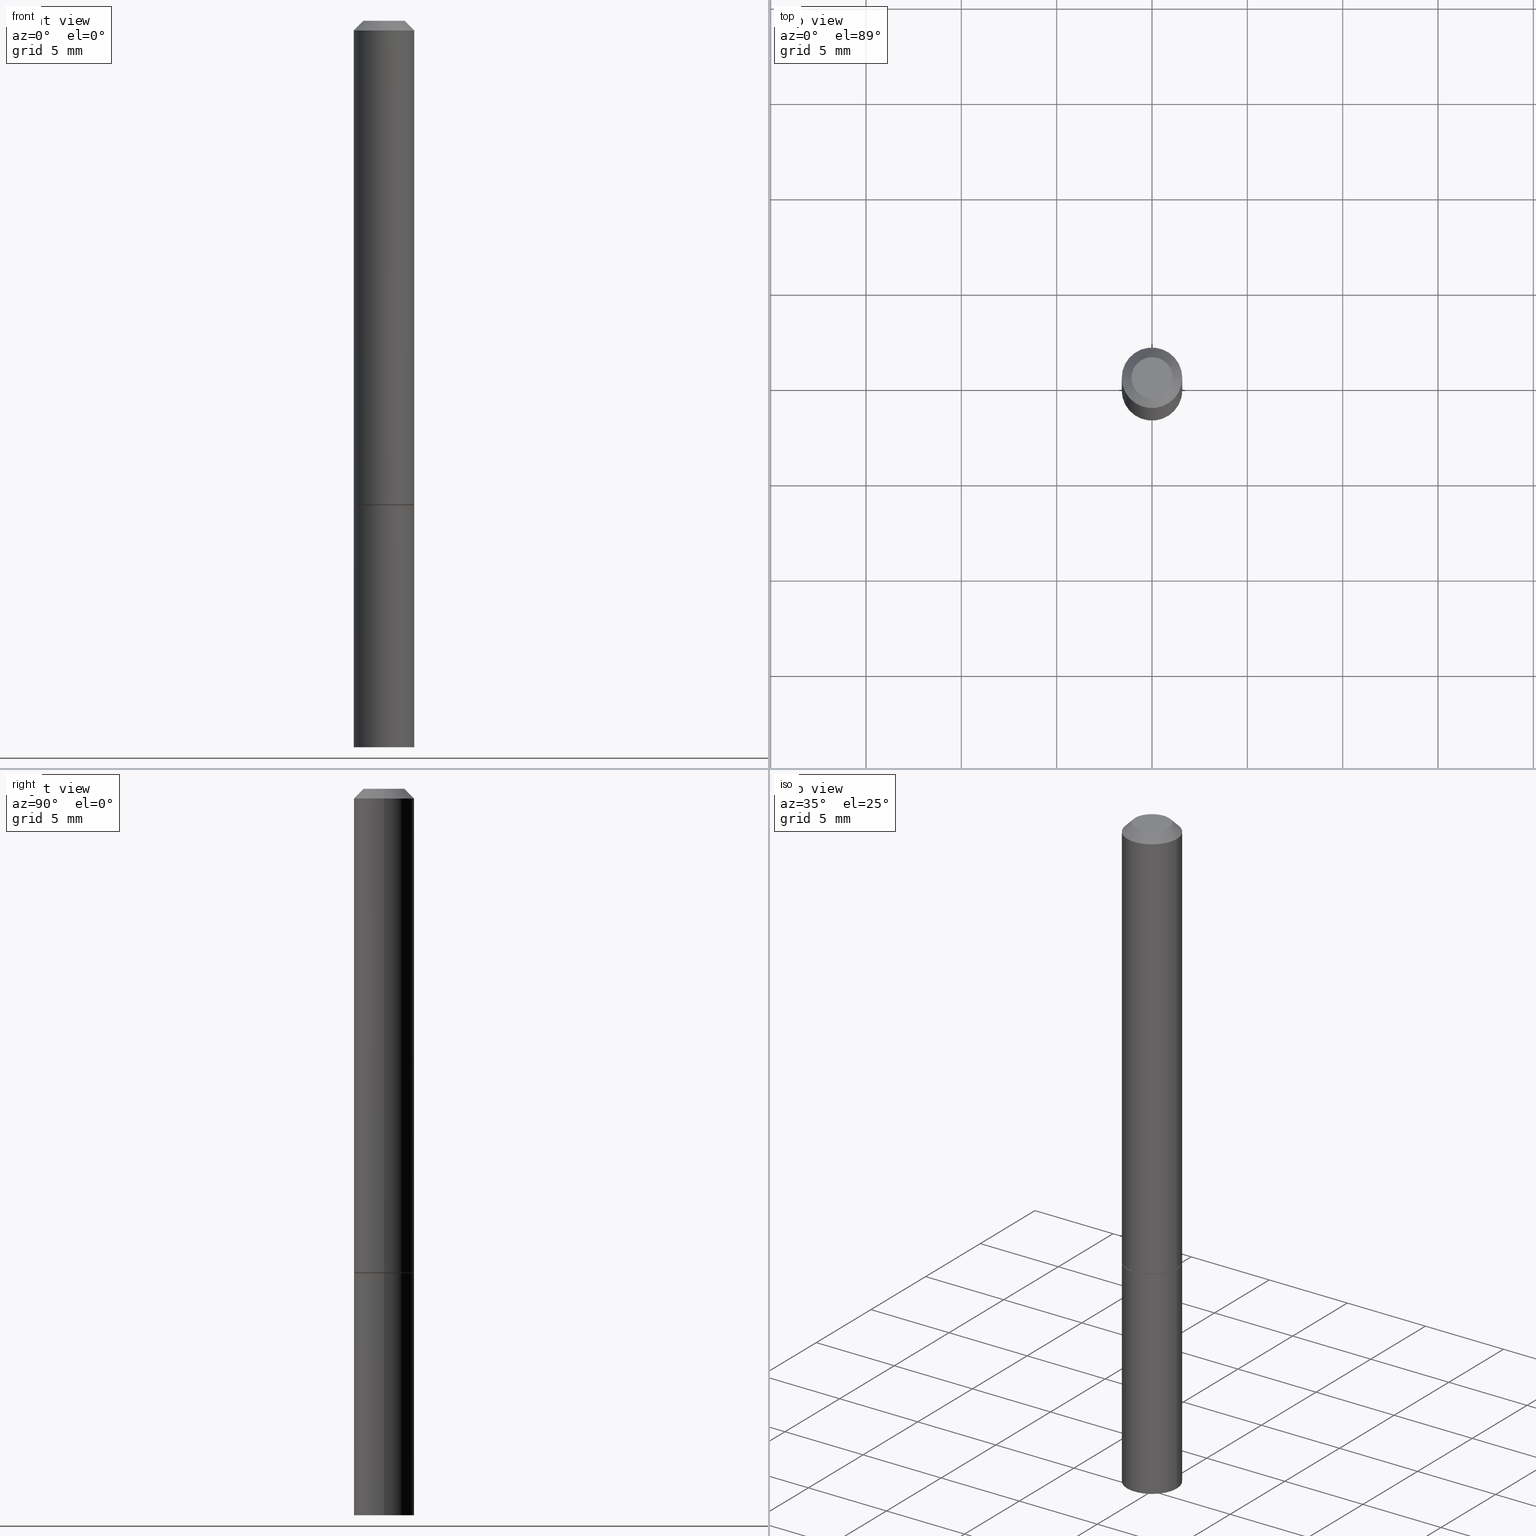
[diagram: canonical four-view strip — front | top / right | iso, engineering-drawing reading convention]
A machine part, canonical four-view strip (front | top / right | iso — engineering-drawing reading convention). The complete STEP part file that produces these views, byte-faithful:
ISO-10303-21;
HEADER;
FILE_DESCRIPTION (( 'STEP AP203' ),
    '1' );
FILE_NAME ('91272.STEP',
    '2024-03-01T04:19:20',
    ( '' ),
    ( '' ),
    'SwSTEP 2.0',
    'SolidWorks 2023',
    '' );
FILE_SCHEMA (( 'CONFIG_CONTROL_DESIGN' ));
ENDSEC;

DATA;
#1 = DIRECTION ( 'NONE',  ( 0.7071067811865595631, -2.468850131082382884E-15, 0.7071067811865354713 ) ) ;
#2 = DIMENSIONAL_EXPONENTS ( 1.000000000000000000, 0.000000000000000000, 0.000000000000000000, 0.000000000000000000, 0.000000000000000000, 0.000000000000000000, 0.000000000000000000 ) ;
#3 = LINE ( 'NONE', #30, #105 ) ;
#4 = DIRECTION ( 'NONE',  ( -0.7071067811865464625, 2.468850131082245622E-15, -0.7071067811865485719 ) ) ;
#5 = ORIENTED_EDGE ( 'NONE', *, *, #342, .F. ) ;
#6 = DIRECTION ( 'NONE',  ( 1.000000000000000000, -6.982962677686267499E-15, 4.876176775795935793E-29 ) ) ;
#7 = AXIS2_PLACEMENT_3D ( 'NONE', #261, #148, #96 ) ;
#8 = FACE_OUTER_BOUND ( 'NONE', #252, .T. ) ;
#9 = EDGE_CURVE ( 'NONE', #135, #25, #229, .T. ) ;
#10 = PERSON_AND_ORGANIZATION_ROLE ( 'classification_officer' ) ;
#11 = VECTOR ( 'NONE', #1, 39.37007874015748143 ) ;
#12 = APPLICATION_PROTOCOL_DEFINITION ( 'international standard', 'config_control_design', 1994, #344 ) ;
#13 = PLANE ( 'NONE',  #152 ) ;
#14 = DIRECTION ( 'NONE',  ( 1.000000000000000000, -6.982962677686265133E-15, 0.000000000000000000 ) ) ;
#15 = VECTOR ( 'NONE', #302, 39.37007874015748143 ) ;
#16 = ORGANIZATION ( 'UNSPECIFIED', 'UNSPECIFIED', '' ) ;
#17 = APPROVAL_ROLE ( '' ) ;
#18 = CC_DESIGN_DATE_AND_TIME_ASSIGNMENT ( #125, #247, ( #222 ) ) ;
#19 = ORIENTED_EDGE ( 'NONE', *, *, #151, .F. ) ;
#20 = PERSON_AND_ORGANIZATION_ROLE ( 'design_supplier' ) ;
#21 = VERTEX_POINT ( 'NONE', #155 ) ;
#22 = PERSON_AND_ORGANIZATION_ROLE ( 'design_owner' ) ;
#23 = CARTESIAN_POINT ( 'NONE',  ( 0.06150000000000001299, -3.920933543520851632E-15, -1.000000000000000222 ) ) ;
#24 = ADVANCED_BREP_SHAPE_REPRESENTATION ( '91272', ( #75, #320, #196 ), #70 ) ;
#25 = VERTEX_POINT ( 'NONE', #166 ) ;
#26 = FACE_OUTER_BOUND ( 'NONE', #73, .T. ) ;
#27 = AXIS2_PLACEMENT_3D ( 'NONE', #136, #87, #242 ) ;
#28 = CIRCLE ( 'NONE', #169, 0.06150000000000001299 ) ;
#29 = ADVANCED_FACE ( 'NONE', ( #279 ), #69, .T. ) ;
#30 = CARTESIAN_POINT ( 'NONE',  ( -0.06250000000000001388, 4.440892098500627148E-16, -3.074334431409317165E-30 ) ) ;
#31 = DIRECTION ( 'NONE',  ( 1.000000000000000000, -6.982962677686266711E-15, 4.876176775795935793E-29 ) ) ;
#32 = CARTESIAN_POINT ( 'NONE',  ( -0.04249999999999991979, 3.316907271900968207E-16, -2.134256245050425658E-17 ) ) ;
#33 = ADVANCED_FACE ( 'NONE', ( #68 ), #94, .T. ) ;
#34 = DIRECTION ( 'NONE',  ( -2.445468806185136597E-29, 3.491481338843145583E-15, 1.000000000000000000 ) ) ;
#35 = CARTESIAN_POINT ( 'NONE',  ( 0.06250000000000001388, -3.927916506198537646E-15, -1.000000000000000222 ) ) ;
#36 = CARTESIAN_POINT ( 'NONE',  ( 2.445468806185136877E-29, -3.491481338843145977E-15, -1.000000000000000222 ) ) ;
#37 = APPROVAL_PERSON_ORGANIZATION ( #164, #85, #292 ) ;
#38 = ORIENTED_EDGE ( 'NONE', *, *, #319, .F. ) ;
#39 = DIRECTION ( 'NONE',  ( 1.000000000000000000, -6.982962677686268288E-15, 0.000000000000000000 ) ) ;
#40 = COORDINATED_UNIVERSAL_TIME_OFFSET ( 5, 0, .BEHIND. ) ;
#41 = VERTEX_POINT ( 'NONE', #35 ) ;
#42 = PRODUCT_RELATED_PRODUCT_CATEGORY ( 'detail', '', ( #199 ) ) ;
#43 = PERSON_AND_ORGANIZATION ( #83, #16 ) ;
#44 = CARTESIAN_POINT ( 'NONE',  ( -0.06250000000000001388, -3.920262463703869855E-15, -1.000000000000000222 ) ) ;
#45 = DESIGN_CONTEXT ( 'detailed design', #123, 'design' ) ;
#46 = EDGE_CURVE ( 'NONE', #200, #234, #210, .T. ) ;
#47 = ORIENTED_EDGE ( 'NONE', *, *, #307, .F. ) ;
#48 = EDGE_CURVE ( 'NONE', #135, #163, #270, .T. ) ;
#49 = CARTESIAN_POINT ( 'NONE',  ( 4.890937612370282792E-31, -6.982962677686303935E-17, -0.02000000000000003858 ) ) ;
#50 = PRODUCT_DEFINITION_FORMATION_WITH_SPECIFIED_SOURCE ( 'ANY', '', #199, .NOT_KNOWN. ) ;
#51 = PERSON_AND_ORGANIZATION_ROLE ( 'creator' ) ;
#52 = ADVANCED_FACE ( 'NONE', ( #8 ), #300, .T. ) ;
#53 = ORIENTED_EDGE ( 'NONE', *, *, #259, .F. ) ;
#54 = LINE ( 'NONE', #134, #327 ) ;
#55 = AXIS2_PLACEMENT_3D ( 'NONE', #80, #280, #202 ) ;
#56 = FACE_OUTER_BOUND ( 'NONE', #355, .T. ) ;
#57 = ORIENTED_EDGE ( 'NONE', *, *, #324, .T. ) ;
#58 = LENGTH_MEASURE_WITH_UNIT ( LENGTH_MEASURE( 0.02539999999999999897 ), #207 );
#59 = CARTESIAN_POINT ( 'NONE',  ( 0.000000000000000000, 0.000000000000000000, 0.000000000000000000 ) ) ;
#60 = FACE_OUTER_BOUND ( 'NONE', #111, .T. ) ;
#61 = CC_DESIGN_SECURITY_CLASSIFICATION ( #222, ( #50 ) ) ;
#62 = ORIENTED_EDGE ( 'NONE', *, *, #114, .T. ) ;
#63 = DIRECTION ( 'NONE',  ( -2.445468806185136597E-29, 3.491481338843145583E-15, 1.000000000000000000 ) ) ;
#64 = DIRECTION ( 'NONE',  ( -1.000000000000000000, 6.982962677686265922E-15, -4.876176775795935793E-29 ) ) ;
#65 = APPLICATION_PROTOCOL_DEFINITION ( 'international standard', 'config_control_design', 1994, #123 ) ;
#66 = ORIENTED_EDGE ( 'NONE', *, *, #181, .F. ) ;
#67 = DIRECTION ( 'NONE',  ( -2.445468806185136877E-29, 3.491481338843145188E-15, 1.000000000000000000 ) ) ;
#68 = FACE_OUTER_BOUND ( 'NONE', #158, .T. ) ;
#69 = CONICAL_SURFACE ( 'NONE', #275, 0.06150000000000001299, 0.7853981633974653764 ) ;
#70 =( GEOMETRIC_REPRESENTATION_CONTEXT ( 3 ) GLOBAL_UNCERTAINTY_ASSIGNED_CONTEXT ( ( #258 ) ) GLOBAL_UNIT_ASSIGNED_CONTEXT ( ( #103, #98, #341 ) ) REPRESENTATION_CONTEXT ( 'NONE', 'WORKASPACE' ) );
#71 = ORIENTED_EDGE ( 'NONE', *, *, #184, .T. ) ;
#72 = VERTEX_POINT ( 'NONE', #347 ) ;
#73 = EDGE_LOOP ( 'NONE', ( #332, #92, #47, #86 ) ) ;
#74 = AXIS2_PLACEMENT_3D ( 'NONE', #59, #285, #120 ) ;
#75 = MANIFOLD_SOLID_BREP ( 'Body-Move/Copy2[1]', #185 ) ;
#76 = APPROVAL ( #213, 'UNSPECIFIED' ) ;
#77 = DIRECTION ( 'NONE',  ( -2.445468806185136877E-29, 3.491481338843145188E-15, 1.000000000000000000 ) ) ;
#78 = CARTESIAN_POINT ( 'NONE',  ( 2.967759138016657633E-16, 0.04249999999999991979, -1.590592381260844414E-16 ) ) ;
#79 = APPROVAL_DATE_TIME ( #276, #173 ) ;
#80 = CARTESIAN_POINT ( 'NONE',  ( 4.364351673554284500E-16, 0.06249999999999478195, -1.500000000000000444 ) ) ;
#81 = CONICAL_SURFACE ( 'NONE', #109, 0.06249999999999988204, 0.7853981633974468357 ) ;
#82 = CC_DESIGN_APPROVAL ( #76, ( #222 ) ) ;
#83 = PERSON ( 'UNSPECIFIED', 'UNSPECIFIED', 'UNSPECIFIED', ('UNSPECIFIED'), ('UNSPECIFIED'), ('UNSPECIFIED') ) ;
#84 = ORIENTED_EDGE ( 'NONE', *, *, #167, .T. ) ;
#85 = APPROVAL ( #219, 'UNSPECIFIED' ) ;
#86 = ORIENTED_EDGE ( 'NONE', *, *, #100, .F. ) ;
#87 = DIRECTION ( 'NONE',  ( -2.445468806185136597E-29, 3.491481338843145583E-15, 1.000000000000000000 ) ) ;
#88 = DIRECTION ( 'NONE',  ( -2.445468806185136597E-29, 3.491481338843145583E-15, 1.000000000000000000 ) ) ;
#89 = CARTESIAN_POINT ( 'NONE',  ( 0.000000000000000000, 0.000000000000000000, 0.000000000000000000 ) ) ;
#90 = DIRECTION ( 'NONE',  ( -2.445468806185136877E-29, 3.491481338843145188E-15, 1.000000000000000000 ) ) ;
#91 = APPROVAL_PERSON_ORGANIZATION ( #102, #173, #221 ) ;
#92 = ORIENTED_EDGE ( 'NONE', *, *, #225, .T. ) ;
#93 = DIRECTION ( 'NONE',  ( 0.7071067811865464625, -7.319954787623252890E-15, -0.7071067811865485719 ) ) ;
#94 = CYLINDRICAL_SURFACE ( 'NONE', #74, 0.06250000000000001388 ) ;
#95 = DATE_AND_TIME ( #241, #144 ) ;
#96 = DIRECTION ( 'NONE',  ( -1.000000000000000000, 6.982962677686266711E-15, 0.000000000000000000 ) ) ;
#97 = CARTESIAN_POINT ( 'NONE',  ( 0.06250000000000001388, -4.364351673553918173E-16, 3.047610484872460571E-30 ) ) ;
#98 =( NAMED_UNIT ( * ) PLANE_ANGLE_UNIT ( ) SI_UNIT ( $, .RADIAN. ) );
#99 = DATE_AND_TIME ( #351, #218 ) ;
#100 = EDGE_CURVE ( 'NONE', #294, #41, #149, .T. ) ;
#101 = SHAPE_DEFINITION_REPRESENTATION ( #143, #24 ) ;
#102 = PERSON_AND_ORGANIZATION ( #83, #16 ) ;
#103 =( CONVERSION_BASED_UNIT ( 'INCH', #58 ) LENGTH_UNIT ( ) NAMED_UNIT ( #2 ) );
#104 = AXIS2_PLACEMENT_3D ( 'NONE', #288, #340, #31 ) ;
#105 = VECTOR ( 'NONE', #145, 39.37007874015748143 ) ;
#106 = ORIENTED_EDGE ( 'NONE', *, *, #114, .F. ) ;
#107 = DIRECTION ( 'NONE',  ( 1.000000000000000000, -6.982962677686269077E-15, 0.000000000000000000 ) ) ;
#108 = ORIENTED_EDGE ( 'NONE', *, *, #167, .F. ) ;
#109 = AXIS2_PLACEMENT_3D ( 'NONE', #289, #239, #240 ) ;
#110 = EDGE_LOOP ( 'NONE', ( #360, #139 ) ) ;
#111 = EDGE_LOOP ( 'NONE', ( #38, #84, #71, #358 ) ) ;
#112 = DIRECTION ( 'NONE',  ( -2.445468806185136597E-29, 3.491481338843145583E-15, 1.000000000000000000 ) ) ;
#113 = ORIENTED_EDGE ( 'NONE', *, *, #251, .F. ) ;
#114 = EDGE_CURVE ( 'NONE', #72, #294, #195, .T. ) ;
#115 = DIRECTION ( 'NONE',  ( 1.000000000000000000, -6.982962677686265133E-15, 0.000000000000000000 ) ) ;
#116 = CC_DESIGN_DATE_AND_TIME_ASSIGNMENT ( #99, #253, ( #366 ) ) ;
#117 = DIRECTION ( 'NONE',  ( 1.000000000000000000, -6.982962677686265922E-15, 4.876176775795935793E-29 ) ) ;
#118 = ORIENTED_EDGE ( 'NONE', *, *, #324, .F. ) ;
#119 = AXIS2_PLACEMENT_3D ( 'NONE', #49, #359, #277 ) ;
#120 = DIRECTION ( 'NONE',  ( 1.000000000000000000, -6.982962677686267499E-15, 4.876176775795935793E-29 ) ) ;
#121 = FACE_OUTER_BOUND ( 'NONE', #110, .T. ) ;
#122 = DIRECTION ( 'NONE',  ( -2.445468806185136597E-29, 3.491481338843145583E-15, 1.000000000000000000 ) ) ;
#123 = APPLICATION_CONTEXT ( 'configuration controlled 3d designs of mechanical parts and assemblies' ) ;
#124 = DIRECTION ( 'NONE',  ( -2.445468806185136597E-29, 3.491481338843145583E-15, 1.000000000000000000 ) ) ;
#125 = DATE_AND_TIME ( #128, #245 ) ;
#126 = PERSON_AND_ORGANIZATION ( #83, #16 ) ;
#127 = CC_DESIGN_PERSON_AND_ORGANIZATION_ASSIGNMENT ( #43, #20, ( #50 ) ) ;
#128 = CALENDAR_DATE ( 2024, 29, 2 ) ;
#129 = EDGE_CURVE ( 'NONE', #365, #234, #326, .T. ) ;
#130 = ORIENTED_EDGE ( 'NONE', *, *, #349, .F. ) ;
#131 = CC_DESIGN_PERSON_AND_ORGANIZATION_ASSIGNMENT ( #322, #22, ( #199 ) ) ;
#132 = DIRECTION ( 'NONE',  ( -2.445468806185136597E-29, 3.491481338843145583E-15, 1.000000000000000000 ) ) ;
#133 = PERSON_AND_ORGANIZATION_ROLE ( 'creator' ) ;
#134 = CARTESIAN_POINT ( 'NONE',  ( -0.06249999999999993061, 4.440892098500621231E-16, -3.074334431409312610E-30 ) ) ;
#135 = VERTEX_POINT ( 'NONE', #309 ) ;
#136 = CARTESIAN_POINT ( 'NONE',  ( 5.219257071676098903E-46, -7.451715851902235727E-32, -2.134256245050205639E-17 ) ) ;
#137 = ORIENTED_EDGE ( 'NONE', *, *, #342, .T. ) ;
#138 = AXIS2_PLACEMENT_3D ( 'NONE', #306, #265, #172 ) ;
#139 = ORIENTED_EDGE ( 'NONE', *, *, #259, .T. ) ;
#140 = VECTOR ( 'NONE', #67, 39.37007874015748143 ) ;
#141 = ADVANCED_FACE ( 'NONE', ( #60 ), #176, .T. ) ;
#142 = CARTESIAN_POINT ( 'NONE',  ( 2.443023337378951835E-29, -3.487989857504302970E-15, -0.9990000000000002212 ) ) ;
#143 = PRODUCT_DEFINITION_SHAPE ( 'NONE', 'NONE',  #366 ) ;
#144 = LOCAL_TIME ( 23, 19, 20.00000000000000000, #315 ) ;
#145 = DIRECTION ( 'NONE',  ( -2.445468806185136877E-29, 3.491481338843145188E-15, 1.000000000000000000 ) ) ;
#146 = LINE ( 'NONE', #263, #354 ) ;
#147 = PLANE ( 'NONE',  #244 ) ;
#148 = DIRECTION ( 'NONE',  ( 2.445468806185136597E-29, -3.491481338843145583E-15, -1.000000000000000000 ) ) ;
#149 = LINE ( 'NONE', #97, #150 ) ;
#150 = VECTOR ( 'NONE', #90, 39.37007874015748143 ) ;
#151 = EDGE_CURVE ( 'NONE', #256, #365, #146, .T. ) ;
#152 = AXIS2_PLACEMENT_3D ( 'NONE', #220, #165, #117 ) ;
#153 = CARTESIAN_POINT ( 'NONE',  ( 0.06249999999999988204, -4.986107516375829362E-16, -0.02000000000000003858 ) ) ;
#154 = ADVANCED_FACE ( 'NONE', ( #121 ), #147, .F. ) ;
#155 = CARTESIAN_POINT ( 'NONE',  ( 0.06249999999999997918, -3.924425024859694639E-15, -0.9990000000000002212 ) ) ;
#156 = COORDINATED_UNIVERSAL_TIME_OFFSET ( 5, 0, .BEHIND. ) ;
#157 = ADVANCED_FACE ( 'NONE', ( #178 ), #81, .T. ) ;
#158 = EDGE_LOOP ( 'NONE', ( #313, #62, #216, #53 ) ) ;
#159 = CLOSED_SHELL ( 'NONE', ( #52, #295, #157, #197, #141, #29, #284, #362 ) ) ;
#160 = AXIS2_PLACEMENT_3D ( 'NONE', #78, #293, #352 ) ;
#161 = DIRECTION ( 'NONE',  ( -2.445468806185136597E-29, 3.491481338843145583E-15, 1.000000000000000000 ) ) ;
#162 = APPROVAL_PERSON_ORGANIZATION ( #215, #76, #17 ) ;
#163 = VERTEX_POINT ( 'NONE', #343 ) ;
#164 = PERSON_AND_ORGANIZATION ( #83, #16 ) ;
#165 = DIRECTION ( 'NONE',  ( -2.438088387897960049E-29, 3.491481338843145188E-15, 1.000000000000000000 ) ) ;
#166 = CARTESIAN_POINT ( 'NONE',  ( -0.06249999999999999306, -1.334820532290518940E-15, -0.9990000000000002212 ) ) ;
#167 = EDGE_CURVE ( 'NONE', #25, #21, #337, .T. ) ;
#168 = EDGE_LOOP ( 'NONE', ( #170, #291 ) ) ;
#169 = AXIS2_PLACEMENT_3D ( 'NONE', #283, #230, #305 ) ;
#170 = ORIENTED_EDGE ( 'NONE', *, *, #262, .T. ) ;
#171 = VERTEX_POINT ( 'NONE', #44 ) ;
#172 = DIRECTION ( 'NONE',  ( 1.000000000000000000, -6.982962677686261189E-15, 0.000000000000000000 ) ) ;
#173 = APPROVAL ( #346, 'UNSPECIFIED' ) ;
#174 = AXIS2_PLACEMENT_3D ( 'NONE', #243, #236, #182 ) ;
#175 = CIRCLE ( 'NONE', #119, 0.06249999999999988204 ) ;
#176 = CYLINDRICAL_SURFACE ( 'NONE', #104, 0.06249999999999993061 ) ;
#177 = DIRECTION ( 'NONE',  ( 1.000000000000000000, -6.982962677686261189E-15, 0.000000000000000000 ) ) ;
#178 = FACE_OUTER_BOUND ( 'NONE', #187, .T. ) ;
#179 = ORIENTED_EDGE ( 'NONE', *, *, #46, .T. ) ;
#180 = CARTESIAN_POINT ( 'NONE',  ( 2.445468806185136877E-29, -3.491481338843145977E-15, -1.000000000000000222 ) ) ;
#181 = EDGE_CURVE ( 'NONE', #200, #256, #249, .T. ) ;
#182 = DIRECTION ( 'NONE',  ( 1.000000000000000000, -6.982962677686268288E-15, 0.000000000000000000 ) ) ;
#183 = ORIENTED_EDGE ( 'NONE', *, *, #317, .T. ) ;
#184 = EDGE_CURVE ( 'NONE', #21, #234, #206, .T. ) ;
#185 = CLOSED_SHELL ( 'NONE', ( #357, #286, #154, #33 ) ) ;
#186 = AXIS2_PLACEMENT_3D ( 'NONE', #266, #63, #177 ) ;
#187 = EDGE_LOOP ( 'NONE', ( #66, #179, #183, #19 ) ) ;
#188 = CALENDAR_DATE ( 2024, 29, 2 ) ;
#189 = AXIS2_PLACEMENT_3D ( 'NONE', #142, #257, #115 ) ;
#190 = ORIENTED_EDGE ( 'NONE', *, *, #317, .F. ) ;
#191 = DATE_AND_TIME ( #188, #318 ) ;
#192 = DIRECTION ( 'NONE',  ( -2.445468806185136597E-29, 3.491481338843145583E-15, 1.000000000000000000 ) ) ;
#193 = CC_DESIGN_PERSON_AND_ORGANIZATION_ASSIGNMENT ( #299, #133, ( #50 ) ) ;
#194 = APPROVAL_DATE_TIME ( #191, #85 ) ;
#195 = CIRCLE ( 'NONE', #138, 0.06250000000000001388 ) ;
#196 = AXIS2_PLACEMENT_3D ( 'NONE', #89, #248, #316 ) ;
#197 = ADVANCED_FACE ( 'NONE', ( #308 ), #250, .T. ) ;
#198 = FACE_OUTER_BOUND ( 'NONE', #321, .T. ) ;
#199 = PRODUCT ( '91272', '91272', '', ( #336 ) ) ;
#200 = VERTEX_POINT ( 'NONE', #287 ) ;
#201 = CARTESIAN_POINT ( 'NONE',  ( -0.06150000000000001299, -3.054497556350684369E-15, -1.000000000000000222 ) ) ;
#202 = DIRECTION ( 'NONE',  ( -1.000000000000000000, 6.982962677686265922E-15, -4.876176775795935793E-29 ) ) ;
#203 = CC_DESIGN_APPROVAL ( #173, ( #366 ) ) ;
#204 = LINE ( 'NONE', #23, #11 ) ;
#205 = DIRECTION ( 'NONE',  ( 1.000000000000000000, -6.982962677686269077E-15, 0.000000000000000000 ) ) ;
#206 = LINE ( 'NONE', #211, #140 ) ;
#207 =( LENGTH_UNIT ( ) NAMED_UNIT ( * ) SI_UNIT ( $, .METRE. ) );
#208 = DIRECTION ( 'NONE',  ( 1.000000000000000000, -6.982962677686266711E-15, 0.000000000000000000 ) ) ;
#209 = CIRCLE ( 'NONE', #303, 0.06250000000000001388 ) ;
#210 = LINE ( 'NONE', #153, #217 ) ;
#211 = CARTESIAN_POINT ( 'NONE',  ( 0.06249999999999993061, -4.364351673553911764E-16, 3.047610484872456367E-30 ) ) ;
#212 = FACE_OUTER_BOUND ( 'NONE', #168, .T. ) ;
#213 = APPROVAL_STATUS ( 'not_yet_approved' ) ;
#214 = CARTESIAN_POINT ( 'NONE',  ( 2.443023337378951835E-29, -3.487989857504302970E-15, -0.9990000000000002212 ) ) ;
#215 = PERSON_AND_ORGANIZATION ( #83, #16 ) ;
#216 = ORIENTED_EDGE ( 'NONE', *, *, #100, .T. ) ;
#217 = VECTOR ( 'NONE', #93, 39.37007874015748143 ) ;
#218 = LOCAL_TIME ( 23, 19, 20.00000000000000000, #268 ) ;
#219 = APPROVAL_STATUS ( 'not_yet_approved' ) ;
#220 = CARTESIAN_POINT ( 'NONE',  ( 2.445468806185136877E-29, -3.491481338843145977E-15, -1.000000000000000222 ) ) ;
#221 = APPROVAL_ROLE ( '' ) ;
#222 = SECURITY_CLASSIFICATION ( '', '', #361 ) ;
#223 = PLANE ( 'NONE',  #160 ) ;
#224 = PERSON_AND_ORGANIZATION ( #83, #16 ) ;
#225 = EDGE_CURVE ( 'NONE', #72, #171, #3, .T. ) ;
#226 = AXIS2_PLACEMENT_3D ( 'NONE', #333, #88, #208 ) ;
#227 = ORIENTED_EDGE ( 'NONE', *, *, #262, .F. ) ;
#228 = ORIENTED_EDGE ( 'NONE', *, *, #9, .F. ) ;
#229 = LINE ( 'NONE', #201, #15 ) ;
#230 = DIRECTION ( 'NONE',  ( -2.445468806185136597E-29, 3.491481338843145583E-15, 1.000000000000000000 ) ) ;
#231 = CYLINDRICAL_SURFACE ( 'NONE', #348, 0.06249999999999993061 ) ;
#232 = CC_DESIGN_APPROVAL ( #85, ( #50 ) ) ;
#233 = CYLINDRICAL_SURFACE ( 'NONE', #310, 0.06250000000000001388 ) ;
#234 = VERTEX_POINT ( 'NONE', #311 ) ;
#235 = DIRECTION ( 'NONE',  ( -2.445468806185136597E-29, 3.491481338843145583E-15, 1.000000000000000000 ) ) ;
#236 = DIRECTION ( 'NONE',  ( -2.445468806185136597E-29, 3.491481338843145583E-15, 1.000000000000000000 ) ) ;
#237 = ORIENTED_EDGE ( 'NONE', *, *, #46, .F. ) ;
#238 = CIRCLE ( 'NONE', #186, 0.06250000000000001388 ) ;
#239 = DIRECTION ( 'NONE',  ( 2.445468806185136597E-29, -3.491481338843145583E-15, -1.000000000000000000 ) ) ;
#240 = DIRECTION ( 'NONE',  ( -1.000000000000000000, 6.982962677686266711E-15, 0.000000000000000000 ) ) ;
#241 = CALENDAR_DATE ( 2024, 29, 2 ) ;
#242 = DIRECTION ( 'NONE',  ( 1.000000000000000000, -6.982962677686267499E-15, 4.879498284297452955E-29 ) ) ;
#243 = CARTESIAN_POINT ( 'NONE',  ( 2.445468806185136877E-29, -3.491481338843145977E-15, -1.000000000000000222 ) ) ;
#244 = AXIS2_PLACEMENT_3D ( 'NONE', #312, #335, #64 ) ;
#245 = LOCAL_TIME ( 23, 19, 20.00000000000000000, #156 ) ;
#246 = COORDINATED_UNIVERSAL_TIME_OFFSET ( 5, 0, .BEHIND. ) ;
#247 = DATE_TIME_ROLE ( 'classification_date' ) ;
#248 = DIRECTION ( 'NONE',  ( 0.000000000000000000, 0.000000000000000000, 1.000000000000000000 ) ) ;
#249 = CIRCLE ( 'NONE', #27, 0.04249999999999991979 ) ;
#250 = CONICAL_SURFACE ( 'NONE', #7, 0.06249999999999988204, 0.7853981633974468357 ) ;
#251 = EDGE_CURVE ( 'NONE', #294, #72, #238, .T. ) ;
#252 = EDGE_LOOP ( 'NONE', ( #329, #274, #5, #118 ) ) ;
#253 = DATE_TIME_ROLE ( 'creation_date' ) ;
#254 = ORIENTED_EDGE ( 'NONE', *, *, #48, .T. ) ;
#255 = CIRCLE ( 'NONE', #363, 0.04249999999999991979 ) ;
#256 = VERTEX_POINT ( 'NONE', #32 ) ;
#257 = DIRECTION ( 'NONE',  ( -2.445468806185136597E-29, 3.491481338843145583E-15, 1.000000000000000000 ) ) ;
#258 = UNCERTAINTY_MEASURE_WITH_UNIT (LENGTH_MEASURE( 1.000000000000000082E-05 ), #103, 'distance_accuracy_value', 'NONE');
#259 = EDGE_CURVE ( 'NONE', #171, #41, #209, .T. ) ;
#260 = AXIS2_PLACEMENT_3D ( 'NONE', #36, #235, #314 ) ;
#261 = CARTESIAN_POINT ( 'NONE',  ( 4.890937612370282792E-31, -6.982962677686303935E-17, -0.02000000000000003858 ) ) ;
#262 = EDGE_CURVE ( 'NONE', #256, #200, #255, .T. ) ;
#263 = CARTESIAN_POINT ( 'NONE',  ( -0.06249999999999988204, 3.666055405785277796E-16, -0.02000000000000003858 ) ) ;
#264 = ORIENTED_EDGE ( 'NONE', *, *, #184, .F. ) ;
#265 = DIRECTION ( 'NONE',  ( -2.445468806185136597E-29, 3.491481338843145583E-15, 1.000000000000000000 ) ) ;
#266 = CARTESIAN_POINT ( 'NONE',  ( 3.668203209277704895E-29, -5.237222008264718177E-15, -1.500000000000000222 ) ) ;
#267 = CARTESIAN_POINT ( 'NONE',  ( 2.445468806185136877E-29, -3.491481338843145977E-15, -1.000000000000000222 ) ) ;
#268 = COORDINATED_UNIVERSAL_TIME_OFFSET ( 5, 0, .BEHIND. ) ;
#269 = DIRECTION ( 'NONE',  ( 1.000000000000000000, -6.982962677686267499E-15, 4.879498284297452955E-29 ) ) ;
#270 = CIRCLE ( 'NONE', #260, 0.06150000000000001299 ) ;
#271 = AXIS2_PLACEMENT_3D ( 'NONE', #331, #132, #205 ) ;
#272 = FACE_OUTER_BOUND ( 'NONE', #290, .T. ) ;
#273 = CARTESIAN_POINT ( 'NONE',  ( -0.06249999999999988204, 3.666055405785277796E-16, -0.02000000000000003858 ) ) ;
#274 = ORIENTED_EDGE ( 'NONE', *, *, #9, .T. ) ;
#275 = AXIS2_PLACEMENT_3D ( 'NONE', #267, #122, #39 ) ;
#276 = DATE_AND_TIME ( #353, #338 ) ;
#277 = DIRECTION ( 'NONE',  ( 1.000000000000000000, -6.982962677686266711E-15, 0.000000000000000000 ) ) ;
#278 = ORIENTED_EDGE ( 'NONE', *, *, #151, .T. ) ;
#279 = FACE_OUTER_BOUND ( 'NONE', #298, .T. ) ;
#280 = DIRECTION ( 'NONE',  ( 2.438088387897960049E-29, -3.491481338843145188E-15, -1.000000000000000000 ) ) ;
#281 = AXIS2_PLACEMENT_3D ( 'NONE', #214, #192, #14 ) ;
#282 = ORIENTED_EDGE ( 'NONE', *, *, #48, .F. ) ;
#283 = CARTESIAN_POINT ( 'NONE',  ( 2.445468806185136877E-29, -3.491481338843145977E-15, -1.000000000000000222 ) ) ;
#284 = ADVANCED_FACE ( 'NONE', ( #272 ), #13, .F. ) ;
#285 = DIRECTION ( 'NONE',  ( -2.445468806185136597E-29, 3.491481338843145583E-15, 1.000000000000000000 ) ) ;
#286 = ADVANCED_FACE ( 'NONE', ( #198 ), #330, .T. ) ;
#287 = CARTESIAN_POINT ( 'NONE',  ( 0.04249999999999991979, -3.950909582714362022E-16, -2.134256245049963743E-17 ) ) ;
#288 = CARTESIAN_POINT ( 'NONE',  ( 0.000000000000000000, 0.000000000000000000, 0.000000000000000000 ) ) ;
#289 = CARTESIAN_POINT ( 'NONE',  ( 4.890937612370282792E-31, -6.982962677686303935E-17, -0.02000000000000003858 ) ) ;
#290 = EDGE_LOOP ( 'NONE', ( #130, #282 ) ) ;
#291 = ORIENTED_EDGE ( 'NONE', *, *, #181, .T. ) ;
#292 = APPROVAL_ROLE ( '' ) ;
#293 = DIRECTION ( 'NONE',  ( 2.438088387897960049E-29, -3.491481338843145188E-15, -1.000000000000000000 ) ) ;
#294 = VERTEX_POINT ( 'NONE', #304 ) ;
#295 = ADVANCED_FACE ( 'NONE', ( #56 ), #231, .T. ) ;
#296 = CARTESIAN_POINT ( 'NONE',  ( 5.219257071676098903E-46, -7.451715851902235727E-32, -2.134256245050205639E-17 ) ) ;
#297 = CIRCLE ( 'NONE', #271, 0.06250000000000001388 ) ;
#298 = EDGE_LOOP ( 'NONE', ( #228, #254, #57, #108 ) ) ;
#299 = PERSON_AND_ORGANIZATION ( #83, #16 ) ;
#300 = CONICAL_SURFACE ( 'NONE', #174, 0.06150000000000001299, 0.7853981633974653764 ) ;
#301 = ORIENTED_EDGE ( 'NONE', *, *, #319, .T. ) ;
#302 = DIRECTION ( 'NONE',  ( -0.7071067811865595631, 7.493145998870398336E-15, 0.7071067811865354713 ) ) ;
#303 = AXIS2_PLACEMENT_3D ( 'NONE', #180, #124, #107 ) ;
#304 = CARTESIAN_POINT ( 'NONE',  ( 0.06250000000000001388, -5.673657175620109846E-15, -1.500000000000000222 ) ) ;
#305 = DIRECTION ( 'NONE',  ( 1.000000000000000000, -6.982962677686268288E-15, 0.000000000000000000 ) ) ;
#306 = CARTESIAN_POINT ( 'NONE',  ( 3.668203209277704895E-29, -5.237222008264718177E-15, -1.500000000000000222 ) ) ;
#307 = EDGE_CURVE ( 'NONE', #41, #171, #297, .T. ) ;
#308 = FACE_OUTER_BOUND ( 'NONE', #339, .T. ) ;
#309 = CARTESIAN_POINT ( 'NONE',  ( -0.06150000000000001299, -3.049199102002462756E-15, -1.000000000000000222 ) ) ;
#310 = AXIS2_PLACEMENT_3D ( 'NONE', #334, #34, #6 ) ;
#311 = CARTESIAN_POINT ( 'NONE',  ( 0.06249999999999988204, -4.986107516375829362E-16, -0.02000000000000003858 ) ) ;
#312 = CARTESIAN_POINT ( 'NONE',  ( 4.364351673554161734E-16, 0.06249999999999652361, -1.000000000000000444 ) ) ;
#313 = ORIENTED_EDGE ( 'NONE', *, *, #225, .F. ) ;
#314 = DIRECTION ( 'NONE',  ( 1.000000000000000000, -6.982962677686268288E-15, 0.000000000000000000 ) ) ;
#315 = COORDINATED_UNIVERSAL_TIME_OFFSET ( 5, 0, .BEHIND. ) ;
#316 = DIRECTION ( 'NONE',  ( 1.000000000000000000, 0.000000000000000000, 0.000000000000000000 ) ) ;
#317 = EDGE_CURVE ( 'NONE', #234, #365, #175, .T. ) ;
#318 = LOCAL_TIME ( 23, 19, 20.00000000000000000, #40 ) ;
#319 = EDGE_CURVE ( 'NONE', #25, #365, #54, .T. ) ;
#320 = MANIFOLD_SOLID_BREP ( 'Body-Move/Copy2[2]', #159 ) ;
#321 = EDGE_LOOP ( 'NONE', ( #113, #106 ) ) ;
#322 = PERSON_AND_ORGANIZATION ( #83, #16 ) ;
#323 = APPROVAL_DATE_TIME ( #95, #76 ) ;
#324 = EDGE_CURVE ( 'NONE', #163, #21, #204, .T. ) ;
#325 = CC_DESIGN_PERSON_AND_ORGANIZATION_ASSIGNMENT ( #224, #51, ( #366 ) ) ;
#326 = CIRCLE ( 'NONE', #226, 0.06249999999999988204 ) ;
#327 = VECTOR ( 'NONE', #77, 39.37007874015748143 ) ;
#328 = DIRECTION ( 'NONE',  ( 1.000000000000000000, -6.982962677686266711E-15, 4.876176775795935793E-29 ) ) ;
#329 = ORIENTED_EDGE ( 'NONE', *, *, #349, .T. ) ;
#330 = PLANE ( 'NONE',  #55 ) ;
#331 = CARTESIAN_POINT ( 'NONE',  ( 2.445468806185136877E-29, -3.491481338843145977E-15, -1.000000000000000222 ) ) ;
#332 = ORIENTED_EDGE ( 'NONE', *, *, #251, .T. ) ;
#333 = CARTESIAN_POINT ( 'NONE',  ( 4.890937612370282792E-31, -6.982962677686303935E-17, -0.02000000000000003858 ) ) ;
#334 = CARTESIAN_POINT ( 'NONE',  ( 0.000000000000000000, 0.000000000000000000, 0.000000000000000000 ) ) ;
#335 = DIRECTION ( 'NONE',  ( 2.438088387897960049E-29, -3.491481338843145188E-15, -1.000000000000000000 ) ) ;
#336 = MECHANICAL_CONTEXT ( 'NONE', #344, 'mechanical' ) ;
#337 = CIRCLE ( 'NONE', #281, 0.06249999999999997918 ) ;
#338 = LOCAL_TIME ( 23, 19, 20.00000000000000000, #246 ) ;
#339 = EDGE_LOOP ( 'NONE', ( #237, #227, #278, #350 ) ) ;
#340 = DIRECTION ( 'NONE',  ( -2.445468806185136597E-29, 3.491481338843145583E-15, 1.000000000000000000 ) ) ;
#341 =( NAMED_UNIT ( * ) SI_UNIT ( $, .STERADIAN. ) SOLID_ANGLE_UNIT ( ) );
#342 = EDGE_CURVE ( 'NONE', #21, #25, #356, .T. ) ;
#343 = CARTESIAN_POINT ( 'NONE',  ( 0.06150000000000001299, -3.920933543520851632E-15, -1.000000000000000222 ) ) ;
#344 = APPLICATION_CONTEXT ( 'configuration controlled 3d designs of mechanical parts and assemblies' ) ;
#345 = CC_DESIGN_PERSON_AND_ORGANIZATION_ASSIGNMENT ( #126, #10, ( #222 ) ) ;
#346 = APPROVAL_STATUS ( 'not_yet_approved' ) ;
#347 = CARTESIAN_POINT ( 'NONE',  ( -0.06250000000000001388, -3.920262463703869855E-15, -1.500000000000000222 ) ) ;
#348 = AXIS2_PLACEMENT_3D ( 'NONE', #364, #112, #328 ) ;
#349 = EDGE_CURVE ( 'NONE', #163, #135, #28, .T. ) ;
#350 = ORIENTED_EDGE ( 'NONE', *, *, #129, .T. ) ;
#351 = CALENDAR_DATE ( 2024, 29, 2 ) ;
#352 = DIRECTION ( 'NONE',  ( -1.000000000000000000, 6.982962677686265922E-15, -4.876176775795935793E-29 ) ) ;
#353 = CALENDAR_DATE ( 2024, 29, 2 ) ;
#354 = VECTOR ( 'NONE', #4, 39.37007874015748143 ) ;
#355 = EDGE_LOOP ( 'NONE', ( #137, #301, #190, #264 ) ) ;
#356 = CIRCLE ( 'NONE', #189, 0.06249999999999997918 ) ;
#357 = ADVANCED_FACE ( 'NONE', ( #26 ), #233, .T. ) ;
#358 = ORIENTED_EDGE ( 'NONE', *, *, #129, .F. ) ;
#359 = DIRECTION ( 'NONE',  ( -2.445468806185136597E-29, 3.491481338843145583E-15, 1.000000000000000000 ) ) ;
#360 = ORIENTED_EDGE ( 'NONE', *, *, #307, .T. ) ;
#361 = SECURITY_CLASSIFICATION_LEVEL ( 'unclassified' ) ;
#362 = ADVANCED_FACE ( 'NONE', ( #212 ), #223, .F. ) ;
#363 = AXIS2_PLACEMENT_3D ( 'NONE', #296, #161, #269 ) ;
#364 = CARTESIAN_POINT ( 'NONE',  ( 0.000000000000000000, 0.000000000000000000, 0.000000000000000000 ) ) ;
#365 = VERTEX_POINT ( 'NONE', #273 ) ;
#366 = PRODUCT_DEFINITION ( 'UNKNOWN', '', #50, #45 ) ;
ENDSEC;
END-ISO-10303-21;
